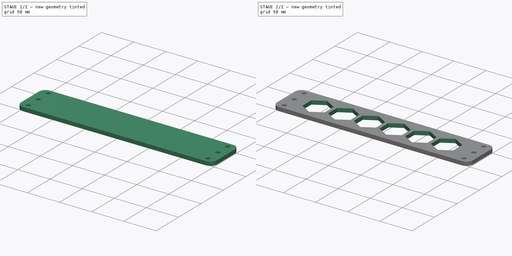
[diagram: build sequence overview — one tinted view per stage of 2, left to right]
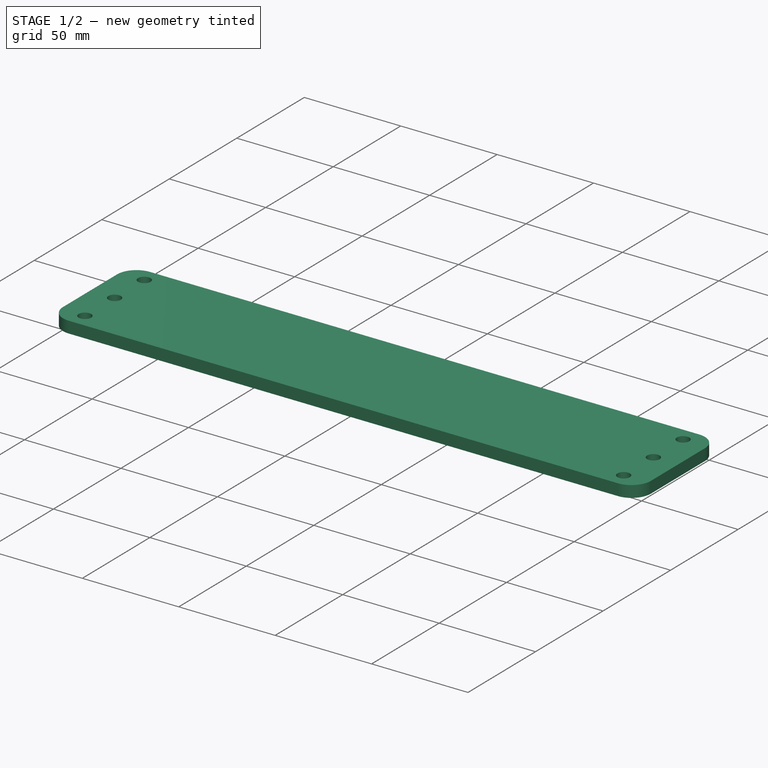
[diagram: stage 1 of 2 — iso view after this stage's code; geometry added in this stage tinted green]
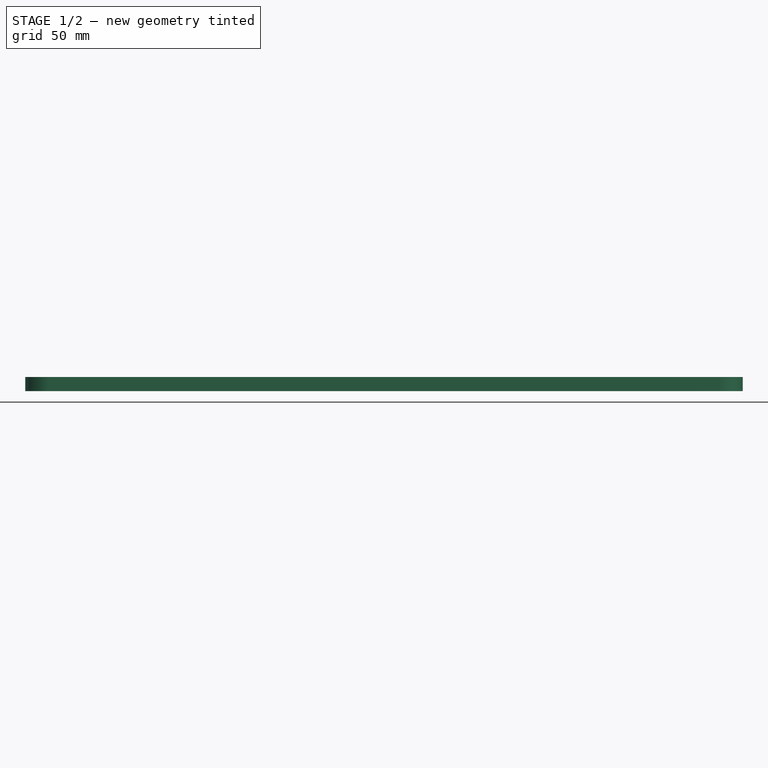
[diagram: stage 1 of 2 — front view after this stage's code; geometry added in this stage tinted green]
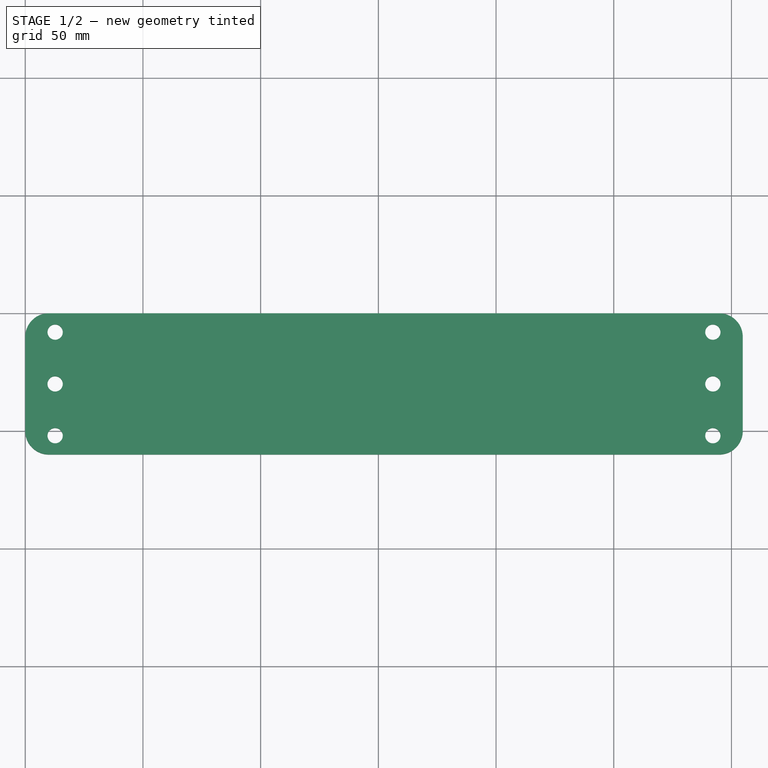
[diagram: stage 1 of 2 — top view after this stage's code; geometry added in this stage tinted green]
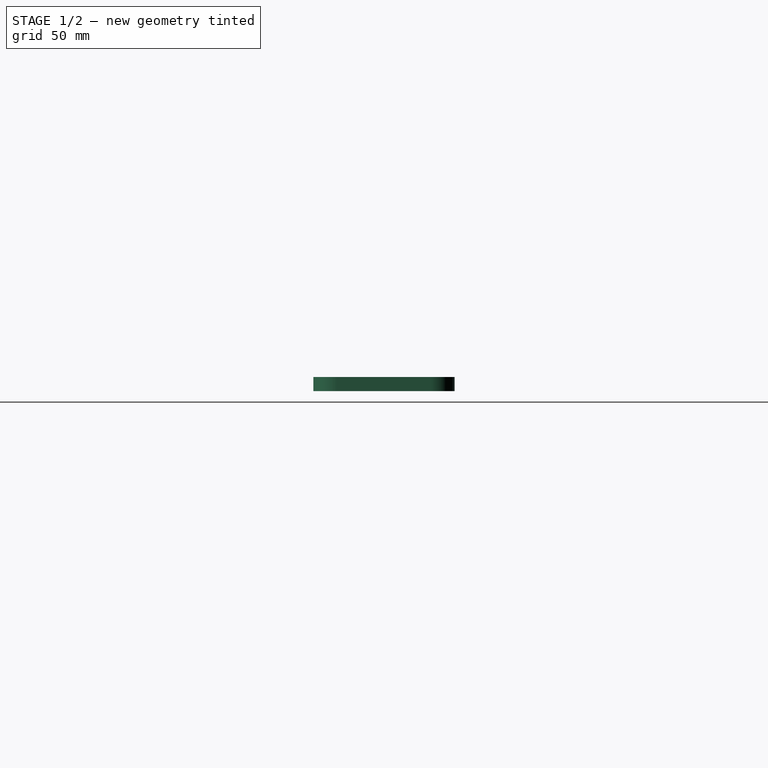
[diagram: stage 1 of 2 — right view after this stage's code; geometry added in this stage tinted green]
FCSTD DOCUMENT  (FreeCAD 1.0R39319 (Git))
Label: side
License: All rights reserved
LicenseURL: https://en.wikipedia.org/wiki/All_rights_reserved
objects: Sketcher::SketchObject×2, PartDesign::Pad×1, PartDesign::Pocket×1, PartDesign::Body×1
note: 11 computed .brp shape members not serialized (recipe doc carries the construction recipe); baked Part::Feature solids carry a one-line shape summary decoded from their .brp

FEATURE [Sketcher::SketchObject] Sketch001
  ArcFitTolerance = 1e-06
  AttachmentSupport = -> [XY_Plane002]
  FullyConstrained = true
  MakeInternals = false
  MapMode = 5
  sketch-geometry (16):
    g0: LineSegment StartX=0 StartY=-10 StartZ=0 EndX=0 EndY=-50 EndZ=0
    g1: LineSegment StartX=10 StartY=-60 StartZ=0 EndX=294.8 EndY=-60 EndZ=0
    g2: LineSegment StartX=304.8 StartY=-50 StartZ=0 EndX=304.8 EndY=-10 EndZ=0
    g3: LineSegment StartX=294.8 StartY=0 StartZ=0 EndX=10 EndY=0 EndZ=0
    g4: ArcOfCircle CenterX=10 CenterY=-10 CenterZ=0 NormalX=0 NormalY=0 NormalZ=1 AngleXU=0 Radius=10 StartAngle=1.5708 EndAngle=3.14159
    g5: ArcOfCircle CenterX=10 CenterY=-50 CenterZ=0 NormalX=0 NormalY=0 NormalZ=1 AngleXU=0 Radius=10 StartAngle=3.14159 EndAngle=4.71239
    g6: ArcOfCircle CenterX=294.8 CenterY=-50 CenterZ=0 NormalX=0 NormalY=0 NormalZ=1 AngleXU=0 Radius=10 StartAngle=4.71239 EndAngle=6.28319
    g7: ArcOfCircle CenterX=294.8 CenterY=-10 CenterZ=0 NormalX=0 NormalY=0 NormalZ=1 AngleXU=0 Radius=10 StartAngle=1.77e-14 EndAngle=1.5708
    g8: GeomPoint [constr] X=0 Y=0 Z=0
    g9: GeomPoint [constr] X=304.8 Y=-60 Z=0
    g10: Circle CenterX=292.1 CenterY=-8 CenterZ=0 NormalX=0 NormalY=0 NormalZ=1 AngleXU=0 Radius=3.25
    g11: Circle CenterX=292.1 CenterY=-52 CenterZ=0 NormalX=0 NormalY=0 NormalZ=1 AngleXU=0 Radius=3.25
    g12: Circle CenterX=292.1 CenterY=-30 CenterZ=0 NormalX=0 NormalY=0 NormalZ=1 AngleXU=0 Radius=3.25
    g13: Circle CenterX=12.7 CenterY=-8 CenterZ=0 NormalX=0 NormalY=0 NormalZ=1 AngleXU=0 Radius=3.25
    g14: Circle CenterX=12.7 CenterY=-52 CenterZ=0 NormalX=0 NormalY=0 NormalZ=1 AngleXU=0 Radius=3.25
    g15: Circle CenterX=12.7 CenterY=-30 CenterZ=0 NormalX=0 NormalY=0 NormalZ=1 AngleXU=0 Radius=3.25
  constraints (42):
    c: Tangent(g0,g4) = -1.5708
    c: Tangent(g0,g5) = -1.5708
    c: Tangent(g1,g5) = -1.5708
    c: Tangent(g1,g6) = -1.5708
    c: Tangent(g2,g6) = -1.5708
    c: Tangent(g2,g7) = -1.5708
    c: Tangent(g3,g7) = -1.5708
    c: Tangent(g3,g4) = -1.5708
    c: Vertical(g0)
    c: Vertical(g2)
    c: Horizontal(g1)
    c: Horizontal(g3)
    c: Equal(g4,g5)
    c: Equal(g5,g6)
    c: Equal(g6,g7)
    c: PointOnObject(g8,g0)
    c: PointOnObject(g8,g3)
    c: PointOnObject(g9,g1)
    c: PointOnObject(g9,g2)
    c: Distance(g0,g2) = 304.8
    c: Distance(g1,g3) = 60
    c: Radius(g5) = 10
    c: DistanceX(g-1,g8) = 0
    c: DistanceY(g8,g-1) = 0
    c: Diameter(g10) = 6.5
    c: Diameter(g11) = 6.5
    c: Diameter(g12) = 6.5
    c: DistanceX(g12,g10) = 0
    c: DistanceX(g12,g11) = 0
    c: DistanceY(g12,g10) = 22
    c: DistanceY(g11,g12) = 22
    c: Diameter(g13) = 6.5
    c: Diameter(g14) = 6.5
    c: Diameter(g15) = 6.5
    c: DistanceX(g15,g13) = 0
    c: DistanceX(g15,g14) = 0
    c: DistanceY(g15,g13) = 22
    c: DistanceY(g14,g15) = 22
    c: DistanceX(g13,g10) = 279.4
    c: DistanceX(g8,g13) = 12.7
    c: DistanceY(g13,g8) = 8
    c: DistanceY(g13,g10) = 0
FEATURE [PartDesign::Pad] Pad
  Direction = (0,0,1)
  Length = 6
  Length2 = 10
  Profile = -> Sketch001
  ReferenceAxis = -> Sketch001 [N_Axis]
  Refine = true
  Suppressed = false
  Type = 0
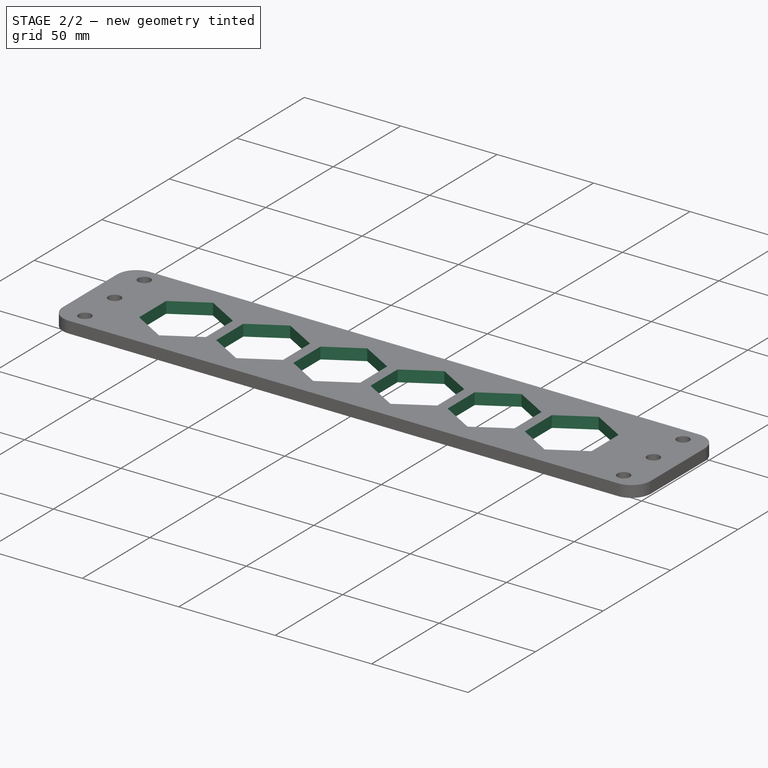
[diagram: stage 2 of 2 — iso view after this stage's code; geometry added in this stage tinted green]
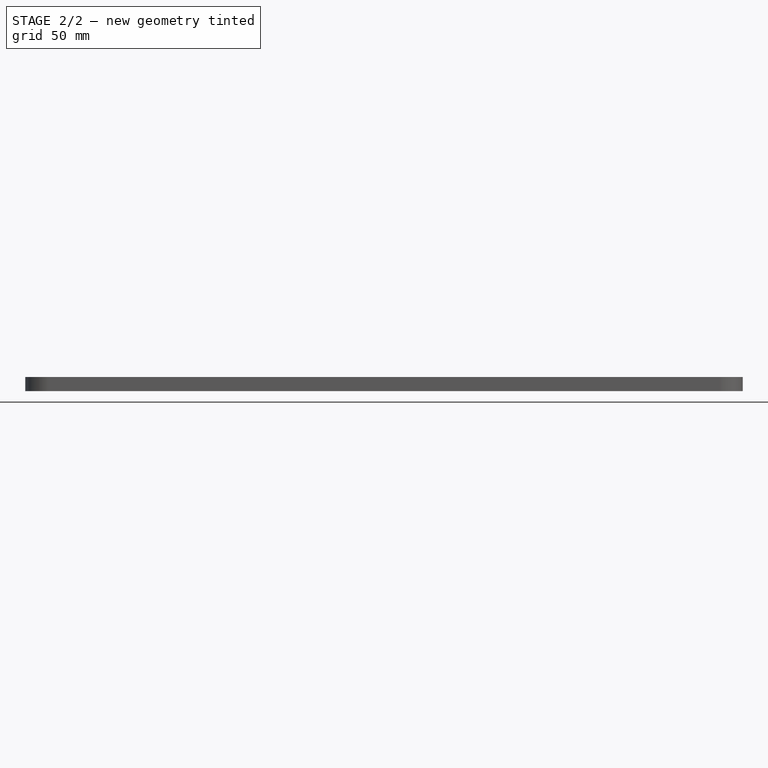
[diagram: stage 2 of 2 — front view after this stage's code; geometry added in this stage tinted green]
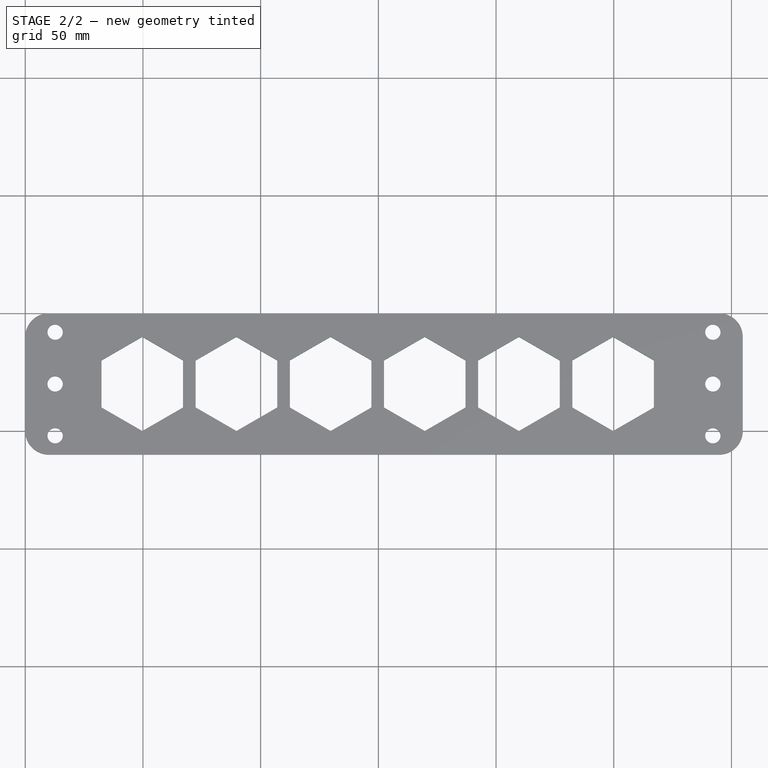
[diagram: stage 2 of 2 — top view after this stage's code; geometry added in this stage tinted green]
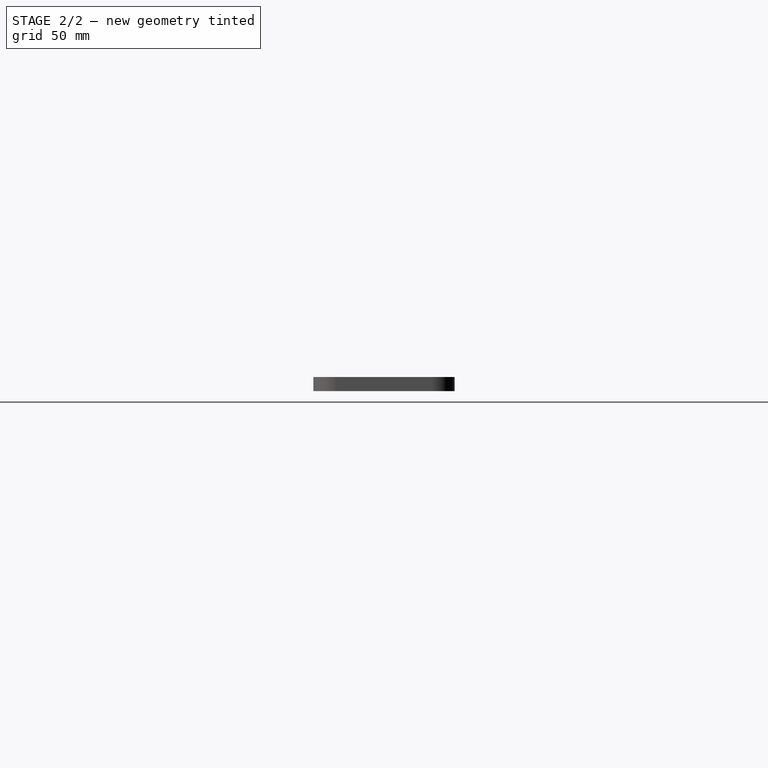
[diagram: stage 2 of 2 — right view after this stage's code; geometry added in this stage tinted green]
FEATURE [Sketcher::SketchObject] Sketch
  ArcFitTolerance = 1e-06
  AttachmentSupport = -> [Pad]
  FullyConstrained = true
  MakeInternals = false
  MapMode = 5
  Placement = pos=(0,0,6) rot=(0,0,1;0rad)
  sketch-geometry (42):
    g0: LineSegment StartX=187.041 StartY=-20 StartZ=0 EndX=169.721 EndY=-10 EndZ=0
    g1: LineSegment StartX=169.721 StartY=-10 StartZ=0 EndX=152.4 EndY=-20 EndZ=0
    g2: LineSegment StartX=152.4 StartY=-20 StartZ=0 EndX=152.4 EndY=-40 EndZ=0
    g3: LineSegment StartX=152.4 StartY=-40 StartZ=0 EndX=169.721 EndY=-50 EndZ=0
    g4: LineSegment StartX=169.721 StartY=-50 StartZ=0 EndX=187.041 EndY=-40 EndZ=0
    g5: LineSegment StartX=187.041 StartY=-40 StartZ=0 EndX=187.041 EndY=-20 EndZ=0
    g6: Circle [constr] CenterX=169.721 CenterY=-30 CenterZ=0 NormalX=0 NormalY=0 NormalZ=1 AngleXU=0 Radius=20
    g7: LineSegment StartX=227.041 StartY=-20 StartZ=0 EndX=209.721 EndY=-10 EndZ=0
    g8: LineSegment StartX=209.721 StartY=-10 StartZ=0 EndX=192.4 EndY=-20 EndZ=0
    g9: LineSegment StartX=192.4 StartY=-20 StartZ=0 EndX=192.4 EndY=-40 EndZ=0
    g10: LineSegment StartX=192.4 StartY=-40 StartZ=0 EndX=209.721 EndY=-50 EndZ=0
    g11: LineSegment StartX=209.721 StartY=-50 StartZ=0 EndX=227.041 EndY=-40 EndZ=0
    g12: LineSegment StartX=227.041 StartY=-40 StartZ=0 EndX=227.041 EndY=-20 EndZ=0
    g13: Circle [constr] CenterX=209.721 CenterY=-30 CenterZ=0 NormalX=0 NormalY=0 NormalZ=1 AngleXU=0 Radius=20
    g14: LineSegment StartX=267.041 StartY=-20 StartZ=0 EndX=249.721 EndY=-10 EndZ=0
    g15: LineSegment StartX=249.721 StartY=-10 StartZ=0 EndX=232.4 EndY=-20 EndZ=0
    g16: LineSegment StartX=232.4 StartY=-20 StartZ=0 EndX=232.4 EndY=-40 EndZ=0
    g17: LineSegment StartX=232.4 StartY=-40 StartZ=0 EndX=249.721 EndY=-50 EndZ=0
    g18: LineSegment StartX=249.721 StartY=-50 StartZ=0 EndX=267.041 EndY=-40 EndZ=0
    g19: LineSegment StartX=267.041 StartY=-40 StartZ=0 EndX=267.041 EndY=-20 EndZ=0
    g20: Circle [constr] CenterX=249.721 CenterY=-30 CenterZ=0 NormalX=0 NormalY=0 NormalZ=1 AngleXU=0 Radius=20
    g21: LineSegment StartX=67.041 StartY=-20 StartZ=0 EndX=49.7205 EndY=-10 EndZ=0
    g22: LineSegment StartX=49.7205 StartY=-10 StartZ=0 EndX=32.4 EndY=-20 EndZ=0
    g23: LineSegment StartX=32.4 StartY=-20 StartZ=0 EndX=32.4 EndY=-40 EndZ=0
    g24: LineSegment StartX=32.4 StartY=-40 StartZ=0 EndX=49.7205 EndY=-50 EndZ=0
    g25: LineSegment StartX=49.7205 StartY=-50 StartZ=0 EndX=67.041 EndY=-40 EndZ=0
    g26: LineSegment StartX=67.041 StartY=-40 StartZ=0 EndX=67.041 EndY=-20 EndZ=0
    g27: Circle [constr] CenterX=49.7205 CenterY=-30 CenterZ=0 NormalX=0 NormalY=0 NormalZ=1 AngleXU=0 Radius=20
    g28: LineSegment StartX=107.041 StartY=-20 StartZ=0 EndX=89.7205 EndY=-10 EndZ=0
    g29: LineSegment StartX=89.7205 StartY=-10 StartZ=0 EndX=72.4 EndY=-20 EndZ=0
    g30: LineSegment StartX=72.4 StartY=-20 StartZ=0 EndX=72.4 EndY=-40 EndZ=0
    g31: LineSegment StartX=72.4 StartY=-40 StartZ=0 EndX=89.7205 EndY=-50 EndZ=0
    g32: LineSegment StartX=89.7205 StartY=-50 StartZ=0 EndX=107.041 EndY=-40 EndZ=0
    g33: LineSegment StartX=107.041 StartY=-40 StartZ=0 EndX=107.041 EndY=-20 EndZ=0
    g34: Circle [constr] CenterX=89.7205 CenterY=-30 CenterZ=0 NormalX=0 NormalY=0 NormalZ=1 AngleXU=0 Radius=20
    g35: LineSegment StartX=147.041 StartY=-20 StartZ=0 EndX=129.721 EndY=-10 EndZ=0
    g36: LineSegment StartX=129.721 StartY=-10 StartZ=0 EndX=112.4 EndY=-20 EndZ=0
    g37: LineSegment StartX=112.4 StartY=-20 StartZ=0 EndX=112.4 EndY=-40 EndZ=0
    g38: LineSegment StartX=112.4 StartY=-40 StartZ=0 EndX=129.721 EndY=-50 EndZ=0
    g39: LineSegment StartX=129.721 StartY=-50 StartZ=0 EndX=147.041 EndY=-40 EndZ=0
    g40: LineSegment StartX=147.041 StartY=-40 StartZ=0 EndX=147.041 EndY=-20 EndZ=0
    g41: Circle [constr] CenterX=129.721 CenterY=-30 CenterZ=0 NormalX=0 NormalY=0 NormalZ=1 AngleXU=0 Radius=20
  constraints (102):
    c: Coincident(g0,g1)
    c: Coincident(g1,g2)
    c: Coincident(g2,g3)
    c: Coincident(g3,g4)
    c: Coincident(g4,g5)
    c: Coincident(g5,g0)
    c: Equal(g0, g1-g5) x5
    c: PointOnObject(g0,g6)
    c: PointOnObject(g1,g6)
    c: PointOnObject(g2,g6)
    c: PointOnObject(g3,g6)
    c: PointOnObject(g4,g6)
    c: PointOnObject(g5,g6)
    c: Radius(g6) = 20
    c: Coincident(g7,g8)
    c: Coincident(g8,g9)
    c: Coincident(g9,g10)
    c: Coincident(g10,g11)
    c: Coincident(g11,g12)
    c: Coincident(g12,g7)
    c: Equal(g7, g8-g12) x5
    c: PointOnObject(g7,g13)
    c: PointOnObject(g8,g13)
    c: PointOnObject(g9,g13)
    c: PointOnObject(g10,g13)
    c: PointOnObject(g11,g13)
    c: PointOnObject(g12,g13)
    c: Radius(g13) = 20
    c: Coincident(g14,g15)
    c: Coincident(g15,g16)
    c: Coincident(g16,g17)
    c: Coincident(g17,g18)
    c: Coincident(g18,g19)
    c: Coincident(g19,g14)
    c: Equal(g14, g15-g19) x5
    c: PointOnObject(g14,g20)
    c: PointOnObject(g15,g20)
    c: PointOnObject(g16,g20)
    c: PointOnObject(g17,g20)
    c: PointOnObject(g18,g20)
    c: PointOnObject(g19,g20)
    c: Radius(g20) = 20
    c: Vertical(g2)
    c: Vertical(g9)
    c: Vertical(g16)
    c: Tangent(g6,g13)
    c: Tangent(g13,g20)
    c: Horizontal(g13,g20)
    c: Horizontal(g6,g13)
    c: Coincident(g21,g22)
    c: Coincident(g22,g23)
    c: Coincident(g23,g24)
    c: Coincident(g24,g25)
    c: Coincident(g25,g26)
    c: Coincident(g26,g21)
    c: Equal(g21, g22-g26) x5
    c: PointOnObject(g21,g27)
    c: PointOnObject(g22,g27)
    c: PointOnObject(g23,g27)
    c: PointOnObject(g24,g27)
    c: PointOnObject(g25,g27)
    c: PointOnObject(g26,g27)
    c: Radius(g27) = 20
    c: Coincident(g28,g29)
    c: Coincident(g29,g30)
    c: Coincident(g30,g31)
    c: Coincident(g31,g32)
    c: Coincident(g32,g33)
    c: Coincident(g33,g28)
    c: Equal(g28, g29-g33) x5
    c: PointOnObject(g28,g34)
    c: PointOnObject(g29,g34)
    c: PointOnObject(g30,g34)
    c: PointOnObject(g31,g34)
    c: PointOnObject(g32,g34)
    c: PointOnObject(g33,g34)
    c: Radius(g34) = 20
    c: Coincident(g35,g36)
    c: Coincident(g36,g37)
    c: Coincident(g37,g38)
    c: Coincident(g38,g39)
    c: Coincident(g39,g40)
    c: Coincident(g40,g35)
    c: Equal(g35, g36-g40) x5
    c: PointOnObject(g35,g41)
    c: PointOnObject(g36,g41)
    c: PointOnObject(g37,g41)
    c: PointOnObject(g38,g41)
    c: PointOnObject(g39,g41)
    c: PointOnObject(g40,g41)
    c: Radius(g41) = 20
    c: Vertical(g23)
    c: Vertical(g30)
    c: Vertical(g37)
    c: Tangent(g27,g34)
    c: Tangent(g34,g41)
    c: Horizontal(g34,g41)
    c: Horizontal(g27,g34)
    c: Tangent(g41,g6)
    c: Horizontal(g41,g6)
    c: DistanceX(g-1,g23) = 32.4
    c: DistanceY(g21,g-1) = 10
FEATURE [PartDesign::Pocket] Pocket
  BaseFeature = -> Pad
  Direction = (0,0,-1)
  Length = 6
  Length2 = 5
  Profile = -> Sketch
  ReferenceAxis = -> Sketch [N_Axis]
  Refine = true
  Suppressed = false
  Type = 0
FEATURE [PartDesign::Body] Body002
  AllowCompound = false
  Group = -> [Sketch001,Pad,Sketch,Pocket]
  Origin = -> Origin002
  Tip = -> Pocket
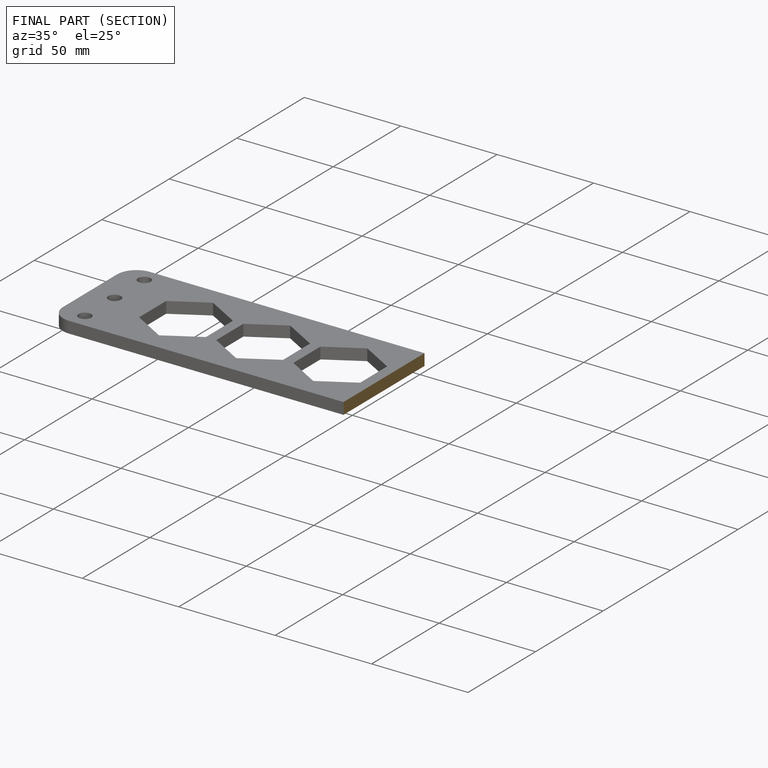
[diagram: finished part — half-section view (interior)]
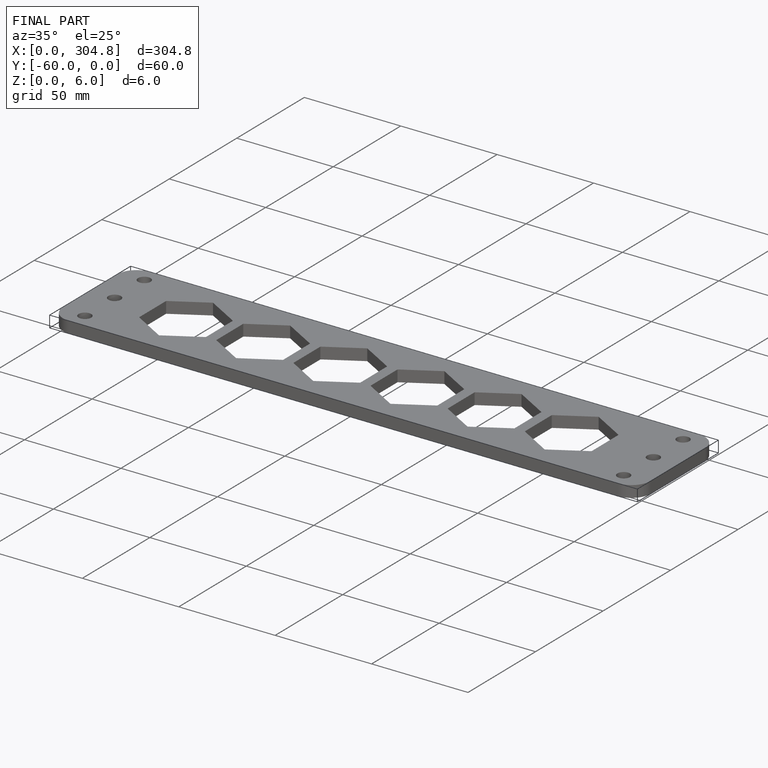
[diagram: finished part — iso view with bounding-box wireframe]
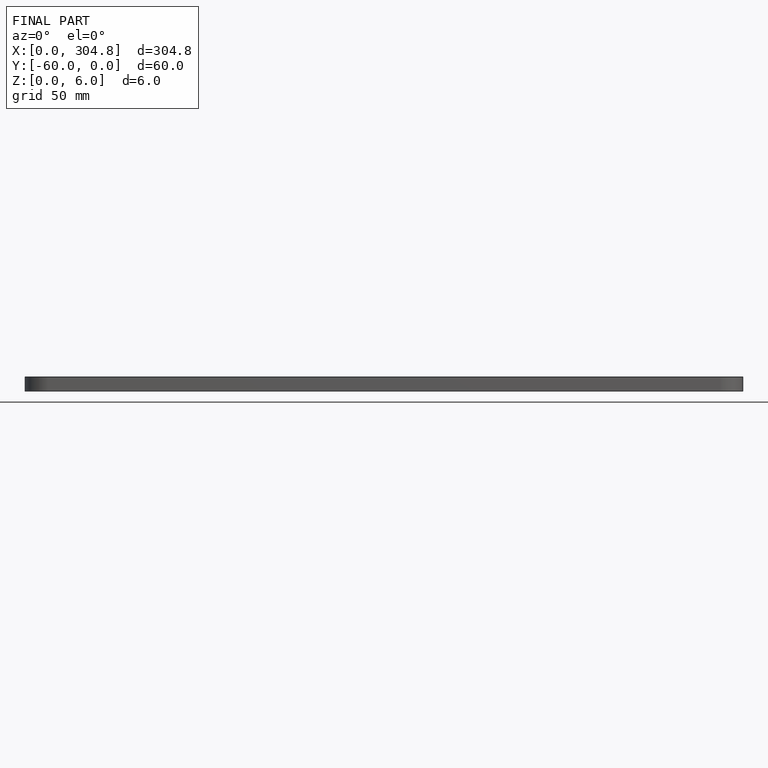
[diagram: finished part — front view with bounding-box wireframe]
